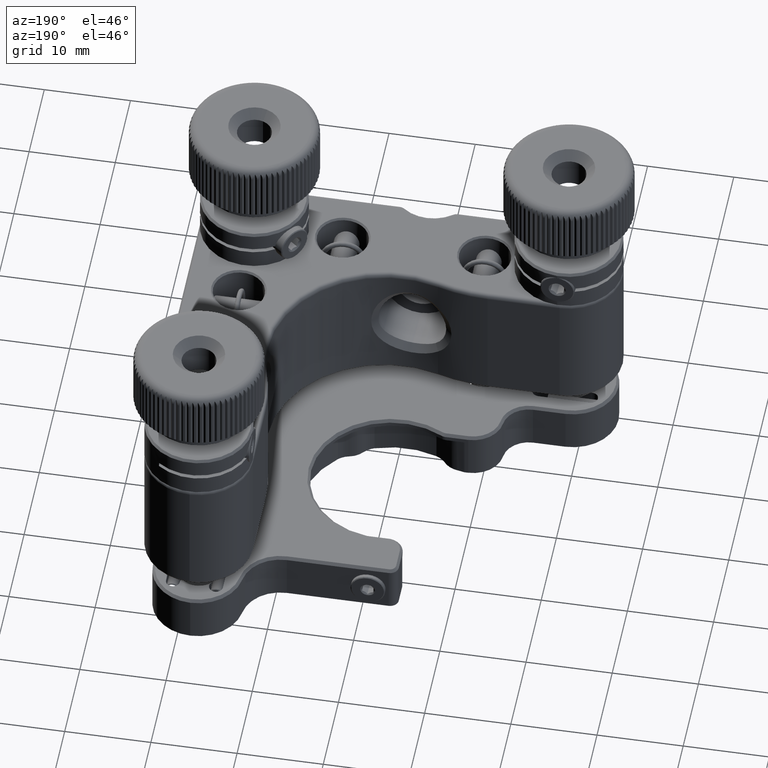
[diagram: clean part render]
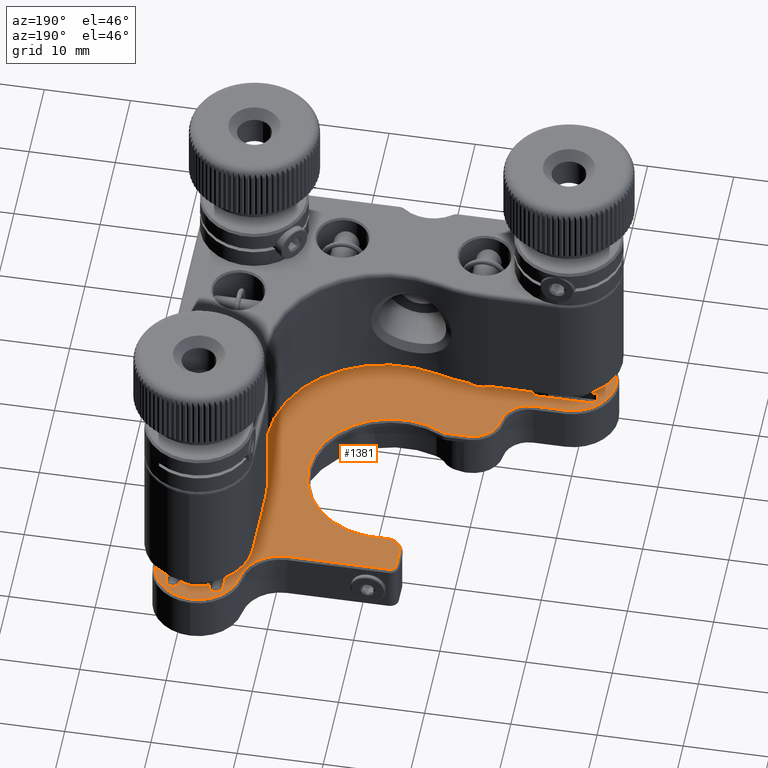
[diagram: same view with one face highlighted and labeled with its STEP entity id]
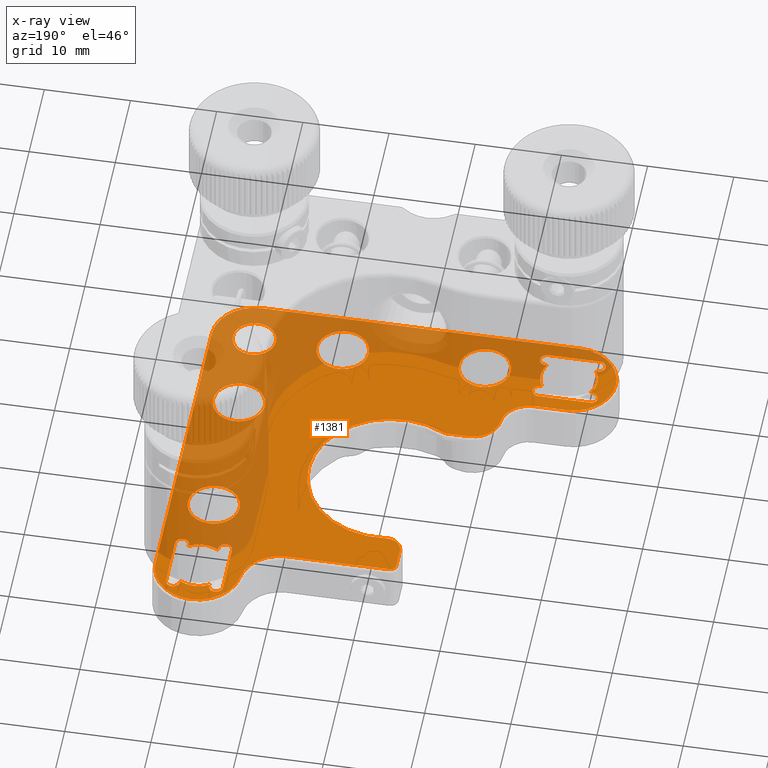
[diagram: x-ray of the same camera — body ghosted, the highlighted face saturated]
A machine part, auxiliary view. The second image highlights one B-rep face of the part: STEP entity #1381.
The next image is the same camera in x-ray: the body ghosted, the highlighted face saturated — about 47% of this face is hidden behind the body in this view.
In plain terms, the highlighted planar face has unit normal (0, -0, -1).
Its self-contained STEP definition (entity closure, byte-faithful):
#86 = CARTESIAN_POINT ( 'NONE',  ( -18.74999999999997513, -23.19999999999999218, -11.00000000000000355 ) ) ;
#655 = DIRECTION ( 'NONE',  ( -1.000000000000000000, 0.000000000000000000, 0.000000000000000000 ) ) ;
#746 = CARTESIAN_POINT ( 'NONE',  ( -21.07842712474621649, -16.54999999999999361, -11.00000000000000355 ) ) ;
#763 = DIRECTION ( 'NONE',  ( -1.000000000000000000, 0.000000000000000000, 0.000000000000000000 ) ) ;
#784 = DIRECTION ( 'NONE',  ( 2.857193325768580482E-17, -1.471345059095184155E-18, -1.000000000000000000 ) ) ;
#876 = FACE_BOUND ( 'NONE', #20900, .T. ) ;
#1008 = VERTEX_POINT ( 'NONE', #54663 ) ;
#1031 = VERTEX_POINT ( 'NONE', #42347 ) ;
#1137 = ORIENTED_EDGE ( 'NONE', *, *, #48537, .T. ) ;
#1381 = ADVANCED_FACE ( 'NONE', ( #24072, #32714, #45590, #20141, #45868, #37474, #20977, #876 ), #16787, .F. ) ;
#1504 = CARTESIAN_POINT ( 'NONE',  ( 18.25000000000002487, 18.25000000000002487, -11.00000000000000355 ) ) ;
#2034 = AXIS2_PLACEMENT_3D ( 'NONE', #14059, #9880, #22714 ) ;
#2043 = ORIENTED_EDGE ( 'NONE', *, *, #44772, .T. ) ;
#2077 = CIRCLE ( 'NONE', #15427, 3.000000000000000888 ) ;
#2567 = CARTESIAN_POINT ( 'NONE',  ( 18.25000000000002487, 18.25000000000002487, -11.00000000000000355 ) ) ;
#2584 = VERTEX_POINT ( 'NONE', #31807 ) ;
#2660 = CARTESIAN_POINT ( 'NONE',  ( -3.949999999999966427, 18.74999999999999645, -11.00000000000000355 ) ) ;
#2754 = VERTEX_POINT ( 'NONE', #41841 ) ;
#2769 = EDGE_CURVE ( 'NONE', #50683, #50042, #15380, .T. ) ;
#3156 = CARTESIAN_POINT ( 'NONE',  ( -15.24999999999998934, -20.74999999999999645, -11.00000000000000355 ) ) ;
#3169 = EDGE_CURVE ( 'NONE', #20405, #9290, #49821, .T. ) ;
#3198 = DIRECTION ( 'NONE',  ( 1.000000000000000000, 0.000000000000000000, 0.000000000000000000 ) ) ;
#3335 = ORIENTED_EDGE ( 'NONE', *, *, #21566, .T. ) ;
#3680 = VERTEX_POINT ( 'NONE', #16563 ) ;
#3787 = CARTESIAN_POINT ( 'NONE',  ( -21.24999999999998934, -19.94999999999999574, -11.00000000000000355 ) ) ;
#3821 = CIRCLE ( 'NONE', #24299, 2.499999999999998668 ) ;
#4159 = AXIS2_PLACEMENT_3D ( 'NONE', #27818, #53256, #11079 ) ;
#4357 = DIRECTION ( 'NONE',  ( 1.000000000000000000, -8.326672684688674053E-17, 2.857193325768579865E-17 ) ) ;
#4768 = CIRCLE ( 'NONE', #30640, 0.7999999999999986011 ) ;
#5061 = ORIENTED_EDGE ( 'NONE', *, *, #25371, .F. ) ;
#5103 = AXIS2_PLACEMENT_3D ( 'NONE', #23134, #53306, #36250 ) ;
#5214 = LINE ( 'NONE', #34272, #34483 ) ;
#5301 = CARTESIAN_POINT ( 'NONE',  ( -21.24999999999998934, -14.94999999999999929, -11.00000000000000355 ) ) ;
#5597 = VERTEX_POINT ( 'NONE', #19201 ) ;
#5657 = DIRECTION ( 'NONE',  ( -2.857193325768580482E-17, 1.471345059095184155E-18, 1.000000000000000000 ) ) ;
#5765 = ORIENTED_EDGE ( 'NONE', *, *, #29178, .F. ) ;
#5788 = DIRECTION ( 'NONE',  ( -2.857193325768580482E-17, 1.471345059095184155E-18, 1.000000000000000000 ) ) ;
#5884 = EDGE_CURVE ( 'NONE', #47738, #1031, #48513, .T. ) ;
#6037 = CIRCLE ( 'NONE', #35443, 2.999999999999995559 ) ;
#6392 = CARTESIAN_POINT ( 'NONE',  ( -18.24999999999998934, -18.24999999999999645, -11.00000000000000355 ) ) ;
#6455 = ORIENTED_EDGE ( 'NONE', *, *, #18020, .T. ) ;
#6591 = EDGE_LOOP ( 'NONE', ( #45961, #41536, #19968, #16815, #51707, #47573, #50253, #40201, #28043, #15415, #36345, #15598, #23830, #35689, #34625, #33349, #13867, #32701, #51493 ) ) ;
#6597 = DIRECTION ( 'NONE',  ( -2.857193325768580482E-17, 1.471345059095184155E-18, 1.000000000000000000 ) ) ;
#6629 = VECTOR ( 'NONE', #40865, 1000.000000000000000 ) ;
#6662 = LINE ( 'NONE', #23415, #50080 ) ;
#6698 = CIRCLE ( 'NONE', #41465, 0.6999999999999979572 ) ;
#6759 = CARTESIAN_POINT ( 'NONE',  ( 20.75000000000002132, 15.25000000000002309, -11.00000000000000355 ) ) ;
#6825 = CIRCLE ( 'NONE', #13967, 2.999999999999995559 ) ;
#6829 = LINE ( 'NONE', #2660, #51516 ) ;
#6831 = DIRECTION ( 'NONE',  ( -1.000000000000000000, 0.000000000000000000, 0.000000000000000000 ) ) ;
#6946 = CARTESIAN_POINT ( 'NONE',  ( 18.25000000000001421, -18.24999999999999645, -11.00000000000000355 ) ) ;
#7342 = CARTESIAN_POINT ( 'NONE',  ( -2.045089285714258853, 10.33073541818146168, -11.00000000000000355 ) ) ;
#7394 = CARTESIAN_POINT ( 'NONE',  ( -8.499999999999976907, -18.24999999999999645, -11.00000000000000355 ) ) ;
#7404 = ORIENTED_EDGE ( 'NONE', *, *, #28397, .T. ) ;
#7564 = EDGE_CURVE ( 'NONE', #17021, #27505, #29701, .T. ) ;
#7613 = DIRECTION ( 'NONE',  ( -2.857193325768580482E-17, 1.471345059095184155E-18, 1.000000000000000000 ) ) ;
#7702 = CARTESIAN_POINT ( 'NONE',  ( -15.24999999999998934, -21.54999999999999361, -11.00000000000000355 ) ) ;
#7758 = CIRCLE ( 'NONE', #5103, 3.300000000000002487 ) ;
#8006 = VERTEX_POINT ( 'NONE', #42434 ) ;
#8044 = DIRECTION ( 'NONE',  ( -2.857193325768580482E-17, 1.471345059095184155E-18, 1.000000000000000000 ) ) ;
#8170 = CARTESIAN_POINT ( 'NONE',  ( 18.25000000000001776, -7.999999999999998224, -11.00000000000000355 ) ) ;
#8177 = EDGE_CURVE ( 'NONE', #9290, #19429, #7758, .T. ) ;
#8536 = CARTESIAN_POINT ( 'NONE',  ( 19.95000000000002061, 21.25000000000001776, -11.00000000000000355 ) ) ;
#8660 = DIRECTION ( 'NONE',  ( -2.857193325768580482E-17, 1.471345059095184155E-18, 1.000000000000000000 ) ) ;
#8704 = VECTOR ( 'NONE', #17431, 1000.000000000000000 ) ;
#8786 = EDGE_CURVE ( 'NONE', #3680, #17370, #39528, .T. ) ;
#8875 = DIRECTION ( 'NONE',  ( -1.000000000000000000, 0.000000000000000000, 0.000000000000000000 ) ) ;
#8942 = VECTOR ( 'NONE', #50440, 1000.000000000000000 ) ;
#9186 = ORIENTED_EDGE ( 'NONE', *, *, #24586, .F. ) ;
#9232 = ORIENTED_EDGE ( 'NONE', *, *, #32099, .T. ) ;
#9290 = VERTEX_POINT ( 'NONE', #37656 ) ;
#9480 = EDGE_CURVE ( 'NONE', #53622, #5597, #25312, .T. ) ;
#9493 = VERTEX_POINT ( 'NONE', #25618 ) ;
#9497 = CARTESIAN_POINT ( 'NONE',  ( -3.949999999999969091, 14.39999999999999680, -11.00000000000000355 ) ) ;
#9598 = CIRCLE ( 'NONE', #53298, 3.300000000000004263 ) ;
#9647 = EDGE_CURVE ( 'NONE', #46936, #39407, #18075, .T. ) ;
#9707 = CIRCLE ( 'NONE', #25747, 3.300000000000004263 ) ;
#9880 = DIRECTION ( 'NONE',  ( 2.857193325768580482E-17, -1.471345059095184155E-18, -1.000000000000000000 ) ) ;
#9935 = EDGE_LOOP ( 'NONE', ( #22109, #25193 ) ) ;
#9968 = EDGE_CURVE ( 'NONE', #51244, #32551, #50719, .T. ) ;
#9984 = DIRECTION ( 'NONE',  ( -1.000000000000000000, 0.000000000000000000, 0.000000000000000000 ) ) ;
#10060 = ORIENTED_EDGE ( 'NONE', *, *, #17234, .T. ) ;
#10159 = EDGE_LOOP ( 'NONE', ( #49282, #1137, #48050, #5765, #45843, #37443, #21227, #34507, #9232, #3335, #35012, #37416, #14880, #21141, #28170 ) ) ;
#10178 = DIRECTION ( 'NONE',  ( -1.000000000000000000, 0.000000000000000000, 0.000000000000000000 ) ) ;
#10698 = CARTESIAN_POINT ( 'NONE',  ( 16.55000000000001847, 21.25000000000001776, -11.00000000000000355 ) ) ;
#10714 = EDGE_CURVE ( 'NONE', #52395, #43062, #53444, .T. ) ;
#10716 = DIRECTION ( 'NONE',  ( -2.857193325768580482E-17, 1.471345059095184155E-18, 1.000000000000000000 ) ) ;
#10731 = VECTOR ( 'NONE', #11519, 1000.000000000000000 ) ;
#10773 = CARTESIAN_POINT ( 'NONE',  ( -5.541002403190551817, -7.389215686274511086, -11.00000000000000355 ) ) ;
#11079 = DIRECTION ( 'NONE',  ( 1.000000000000000000, 0.000000000000000000, 0.000000000000000000 ) ) ;
#11217 = DIRECTION ( 'NONE',  ( -1.000000000000000000, 0.000000000000000000, 0.000000000000000000 ) ) ;
#11397 = AXIS2_PLACEMENT_3D ( 'NONE', #6759, #23791, #48690 ) ;
#11519 = DIRECTION ( 'NONE',  ( 1.000000000000000000, -8.326672684688674053E-17, 2.857193325768579865E-17 ) ) ;
#11768 = CIRCLE ( 'NONE', #54559, 4.949999999999997513 ) ;
#11935 = VERTEX_POINT ( 'NONE', #10773 ) ;
#11942 = AXIS2_PLACEMENT_3D ( 'NONE', #48983, #10716, #53174 ) ;
#12088 = ORIENTED_EDGE ( 'NONE', *, *, #51432, .T. ) ;
#12500 = AXIS2_PLACEMENT_3D ( 'NONE', #26819, #31291, #19536 ) ;
#12686 = DIRECTION ( 'NONE',  ( 1.000000000000000000, 0.000000000000000000, 0.000000000000000000 ) ) ;
#13071 = VERTEX_POINT ( 'NONE', #21129 ) ;
#13824 = VERTEX_POINT ( 'NONE', #53046 ) ;
#13867 = ORIENTED_EDGE ( 'NONE', *, *, #55241, .T. ) ;
#13967 = AXIS2_PLACEMENT_3D ( 'NONE', #8170, #38876, #26021 ) ;
#14059 = CARTESIAN_POINT ( 'NONE',  ( -18.24999999999998934, -18.24999999999999645, -11.00000000000000355 ) ) ;
#14310 = AXIS2_PLACEMENT_3D ( 'NONE', #17073, #34374, #38853 ) ;
#14506 = VERTEX_POINT ( 'NONE', #54344 ) ;
#14549 = CIRCLE ( 'NONE', #45747, 0.7999999999999986011 ) ;
#14839 = EDGE_CURVE ( 'NONE', #13824, #46112, #42675, .T. ) ;
#14880 = ORIENTED_EDGE ( 'NONE', *, *, #21263, .F. ) ;
#14980 = DIRECTION ( 'NONE',  ( 2.857193325768580482E-17, -1.471345059095184155E-18, -1.000000000000000000 ) ) ;
#15181 = CARTESIAN_POINT ( 'NONE',  ( -15.24999999999998934, -15.75000000000000000, -11.00000000000000355 ) ) ;
#15267 = CARTESIAN_POINT ( 'NONE',  ( 8.568058046032309250, 19.89999999999999503, -11.00000000000000355 ) ) ;
#15380 = CIRCLE ( 'NONE', #39429, 4.949999999999999289 ) ;
#15415 = ORIENTED_EDGE ( 'NONE', *, *, #23351, .T. ) ;
#15427 = AXIS2_PLACEMENT_3D ( 'NONE', #52043, #47828, #30779 ) ;
#15598 = ORIENTED_EDGE ( 'NONE', *, *, #39654, .T. ) ;
#15856 = CIRCLE ( 'NONE', #11397, 0.7999999999999986011 ) ;
#15945 = CARTESIAN_POINT ( 'NONE',  ( -0.8999999999999801492, 0.8999999999999961364, -11.00000000000000355 ) ) ;
#16232 = ORIENTED_EDGE ( 'NONE', *, *, #9968, .T. ) ;
#16505 = EDGE_CURVE ( 'NONE', #35398, #9493, #41911, .T. ) ;
#16563 = CARTESIAN_POINT ( 'NONE',  ( 14.95000000000002593, 15.25000000000001954, -11.00000000000000355 ) ) ;
#16619 = CIRCLE ( 'NONE', #4159, 0.7999999999999986011 ) ;
#16627 = CARTESIAN_POINT ( 'NONE',  ( -8.519259301592121858, -10.49999999999999822, -11.00000000000000355 ) ) ;
#16787 = PLANE ( 'NONE',  #14310 ) ;
#16815 = ORIENTED_EDGE ( 'NONE', *, *, #49435, .T. ) ;
#16825 = CARTESIAN_POINT ( 'NONE',  ( 15.75000000000002487, 15.25000000000001954, -11.00000000000000355 ) ) ;
#16840 = CARTESIAN_POINT ( 'NONE',  ( 11.00000000000002309, -18.24999999999999645, -11.00000000000000355 ) ) ;
#17021 = VERTEX_POINT ( 'NONE', #54042 ) ;
#17072 = EDGE_CURVE ( 'NONE', #30415, #20909, #6829, .T. ) ;
#17073 = CARTESIAN_POINT ( 'NONE',  ( 18.25000000000001776, 18.74999999999999645, -11.00000000000000355 ) ) ;
#17185 = DIRECTION ( 'NONE',  ( -1.000000000000000000, 2.545974405236084502E-16, -2.857193325768579865E-17 ) ) ;
#17203 = EDGE_CURVE ( 'NONE', #38359, #51244, #9598, .T. ) ;
#17234 = EDGE_CURVE ( 'NONE', #32551, #43023, #31865, .T. ) ;
#17370 = VERTEX_POINT ( 'NONE', #52076 ) ;
#17431 = DIRECTION ( 'NONE',  ( -2.498001805406601723E-16, 1.000000000000000000, -1.471345059095182229E-18 ) ) ;
#17503 = EDGE_CURVE ( 'NONE', #5597, #50360, #25726, .T. ) ;
#17832 = CARTESIAN_POINT ( 'NONE',  ( 19.95000000000002061, 21.07842712474621649, -11.00000000000000355 ) ) ;
#18020 = EDGE_CURVE ( 'NONE', #14506, #31649, #9707, .T. ) ;
#18075 = LINE ( 'NONE', #52175, #47096 ) ;
#18387 = EDGE_LOOP ( 'NONE', ( #43828, #25812 ) ) ;
#18477 = AXIS2_PLACEMENT_3D ( 'NONE', #39500, #43657, #48139 ) ;
#18518 = EDGE_CURVE ( 'NONE', #49999, #23842, #31144, .T. ) ;
#18593 = CARTESIAN_POINT ( 'NONE',  ( 15.75000000000002132, 21.25000000000001776, -11.00000000000000355 ) ) ;
#18618 = DIRECTION ( 'NONE',  ( -1.000000000000000000, 0.000000000000000000, 0.000000000000000000 ) ) ;
#18812 = LINE ( 'NONE', #23812, #6629 ) ;
#18951 = EDGE_CURVE ( 'NONE', #50360, #54355, #29361, .T. ) ;
#19201 = CARTESIAN_POINT ( 'NONE',  ( 23.20000000000002061, -18.25000000000000355, -11.00000000000000178 ) ) ;
#19429 = VERTEX_POINT ( 'NONE', #32635 ) ;
#19503 = CARTESIAN_POINT ( 'NONE',  ( -11.49999999999997691, -18.24999999999999645, -11.00000000000000355 ) ) ;
#19536 = DIRECTION ( 'NONE',  ( 1.000000000000000000, 0.000000000000000000, 0.000000000000000000 ) ) ;
#19782 = EDGE_CURVE ( 'NONE', #47359, #19829, #24737, .T. ) ;
#19829 = VERTEX_POINT ( 'NONE', #7702 ) ;
#19930 = AXIS2_PLACEMENT_3D ( 'NONE', #33441, #8044, #8875 ) ;
#19968 = ORIENTED_EDGE ( 'NONE', *, *, #2769, .T. ) ;
#20025 = CARTESIAN_POINT ( 'NONE',  ( -21.24999999999998934, -19.94999999999999574, -11.00000000000000355 ) ) ;
#20103 = CARTESIAN_POINT ( 'NONE',  ( -14.94999999999995666, -18.24999999999999645, -11.00000000000000355 ) ) ;
#20141 = FACE_BOUND ( 'NONE', #21329, .T. ) ;
#20405 = VERTEX_POINT ( 'NONE', #20863 ) ;
#20516 = VERTEX_POINT ( 'NONE', #33699 ) ;
#20682 = DIRECTION ( 'NONE',  ( -1.000000000000000000, 7.988858113051084330E-17, 0.000000000000000000 ) ) ;
#20747 = AXIS2_PLACEMENT_3D ( 'NONE', #7394, #24420, #3198 ) ;
#20814 = LINE ( 'NONE', #55188, #31351 ) ;
#20863 = CARTESIAN_POINT ( 'NONE',  ( -8.519259301592121858, -7.300000000000000711, -11.00000000000000355 ) ) ;
#20900 = EDGE_LOOP ( 'NONE', ( #12088, #6455, #7404, #34695, #54259, #27175, #37539, #28834, #16232, #10060, #43718, #2043 ) ) ;
#20909 = VERTEX_POINT ( 'NONE', #33021 ) ;
#20937 = CARTESIAN_POINT ( 'NONE',  ( -21.24999999999998934, -21.54999999999999361, -11.00000000000000355 ) ) ;
#20977 = FACE_BOUND ( 'NONE', #18387, .T. ) ;
#21045 = CARTESIAN_POINT ( 'NONE',  ( 18.25000000000001421, -18.24999999999999645, -11.00000000000000355 ) ) ;
#21047 = CARTESIAN_POINT ( 'NONE',  ( 18.25000000000001776, 8.499999999999998224, -11.00000000000000355 ) ) ;
#21063 = EDGE_CURVE ( 'NONE', #43023, #8006, #35230, .T. ) ;
#21129 = CARTESIAN_POINT ( 'NONE',  ( -5.499999999999975131, -18.24999999999999645, -11.00000000000000355 ) ) ;
#21141 = ORIENTED_EDGE ( 'NONE', *, *, #19782, .F. ) ;
#21227 = ORIENTED_EDGE ( 'NONE', *, *, #7564, .F. ) ;
#21263 = EDGE_CURVE ( 'NONE', #19829, #13824, #23289, .T. ) ;
#21329 = EDGE_LOOP ( 'NONE', ( #32103, #5061 ) ) ;
#21566 = EDGE_CURVE ( 'NONE', #29319, #2754, #46097, .T. ) ;
#21617 = VERTEX_POINT ( 'NONE', #54965 ) ;
#21620 = VECTOR ( 'NONE', #35832, 1000.000000000000000 ) ;
#21701 = CARTESIAN_POINT ( 'NONE',  ( -5.882971001320383309, -8.000000000000000000, -11.00000000000000355 ) ) ;
#21795 = EDGE_CURVE ( 'NONE', #32104, #38359, #5214, .T. ) ;
#21850 = DIRECTION ( 'NONE',  ( -2.857193325768580482E-17, 1.471345059095184155E-18, 1.000000000000000000 ) ) ;
#21875 = EDGE_LOOP ( 'NONE', ( #42280, #40178 ) ) ;
#21970 = DIRECTION ( 'NONE',  ( -2.857193325768580482E-17, 1.471345059095184155E-18, 1.000000000000000000 ) ) ;
#22109 = ORIENTED_EDGE ( 'NONE', *, *, #50739, .F. ) ;
#22132 = VERTEX_POINT ( 'NONE', #54901 ) ;
#22377 = CARTESIAN_POINT ( 'NONE',  ( 23.20000000000001705, 18.74999999999998934, -11.00000000000000178 ) ) ;
#22400 = CARTESIAN_POINT ( 'NONE',  ( 19.95000000000002416, 15.25000000000002309, -11.00000000000000355 ) ) ;
#22698 = CARTESIAN_POINT ( 'NONE',  ( 18.25000000000001776, 18.74999999999999645, -11.00000000000000355 ) ) ;
#22714 = DIRECTION ( 'NONE',  ( -1.000000000000000000, 0.000000000000000000, 0.000000000000000000 ) ) ;
#22758 = CARTESIAN_POINT ( 'NONE',  ( -3.249999999999971134, 15.09999999999999609, -11.00000000000000355 ) ) ;
#22847 = VERTEX_POINT ( 'NONE', #19503 ) ;
#22858 = DIRECTION ( 'NONE',  ( -1.000000000000000000, 0.000000000000000000, 0.000000000000000000 ) ) ;
#23063 = AXIS2_PLACEMENT_3D ( 'NONE', #16627, #33662, #50731 ) ;
#23134 = CARTESIAN_POINT ( 'NONE',  ( -14.99999999999998401, -9.999999999999996447, -11.00000000000000355 ) ) ;
#23289 = CIRCLE ( 'NONE', #39372, 0.7999999999999986011 ) ;
#23323 = DIRECTION ( 'NONE',  ( -3.147559373633474029E-16, -1.000000000000000000, 1.471345059095166051E-18 ) ) ;
#23345 = EDGE_CURVE ( 'NONE', #20516, #47359, #16619, .T. ) ;
#23351 = EDGE_CURVE ( 'NONE', #27411, #1008, #55006, .T. ) ;
#23415 = CARTESIAN_POINT ( 'NONE',  ( 16.55000000000001847, 21.25000000000001776, -11.00000000000000355 ) ) ;
#23633 = EDGE_LOOP ( 'NONE', ( #9186, #25485 ) ) ;
#23697 = EDGE_CURVE ( 'NONE', #21617, #31065, #6825, .T. ) ;
#23714 = VERTEX_POINT ( 'NONE', #86 ) ;
#23768 = AXIS2_PLACEMENT_3D ( 'NONE', #15267, #14980, #9984 ) ;
#23791 = DIRECTION ( 'NONE',  ( 2.857193325768580482E-17, -1.471345059095184155E-18, -1.000000000000000000 ) ) ;
#23812 = CARTESIAN_POINT ( 'NONE',  ( 18.25000000000001421, -7.300000000000003375, -11.00000000000000355 ) ) ;
#23830 = ORIENTED_EDGE ( 'NONE', *, *, #17072, .T. ) ;
#23842 = VERTEX_POINT ( 'NONE', #52037 ) ;
#23879 = VECTOR ( 'NONE', #24722, 1000.000000000000000 ) ;
#23886 = CARTESIAN_POINT ( 'NONE',  ( -14.44999999999999041, -15.75000000000000000, -11.00000000000000355 ) ) ;
#24072 = FACE_OUTER_BOUND ( 'NONE', #6591, .T. ) ;
#24227 = AXIS2_PLACEMENT_3D ( 'NONE', #34668, #5657, #39456 ) ;
#24299 = AXIS2_PLACEMENT_3D ( 'NONE', #21045, #29136, #12686 ) ;
#24313 = AXIS2_PLACEMENT_3D ( 'NONE', #44273, #28048, #6831 ) ;
#24398 = AXIS2_PLACEMENT_3D ( 'NONE', #21047, #37263, #33906 ) ;
#24420 = DIRECTION ( 'NONE',  ( -2.857193325768580482E-17, 1.471345059095184155E-18, 1.000000000000000000 ) ) ;
#24586 = EDGE_CURVE ( 'NONE', #31065, #21617, #6037, .T. ) ;
#24683 = CARTESIAN_POINT ( 'NONE',  ( -18.74999999999997868, -13.30000000000000071, -11.00000000000000355 ) ) ;
#24722 = DIRECTION ( 'NONE',  ( -2.498001805406601723E-16, 1.000000000000000000, -1.471345059095182229E-18 ) ) ;
#24737 = LINE ( 'NONE', #38155, #40176 ) ;
#25193 = ORIENTED_EDGE ( 'NONE', *, *, #53218, .F. ) ;
#25312 = CIRCLE ( 'NONE', #19930, 4.949999999999995737 ) ;
#25371 = EDGE_CURVE ( 'NONE', #9493, #35398, #45156, .T. ) ;
#25485 = ORIENTED_EDGE ( 'NONE', *, *, #23697, .F. ) ;
#25618 = CARTESIAN_POINT ( 'NONE',  ( 5.000000000000024869, -18.24999999999999645, -11.00000000000000355 ) ) ;
#25726 = LINE ( 'NONE', #22377, #53408 ) ;
#25747 = AXIS2_PLACEMENT_3D ( 'NONE', #2567, #45287, #11217 ) ;
#25786 = AXIS2_PLACEMENT_3D ( 'NONE', #6946, #31539, #32626 ) ;
#25812 = ORIENTED_EDGE ( 'NONE', *, *, #52389, .F. ) ;
#26021 = DIRECTION ( 'NONE',  ( 1.000000000000000000, 0.000000000000000000, 0.000000000000000000 ) ) ;
#26221 = DIRECTION ( 'NONE',  ( 1.000000000000000000, 1.042709462316870314E-16, 2.857193325768579865E-17 ) ) ;
#26424 = DIRECTION ( 'NONE',  ( 2.498001805406601723E-16, -1.000000000000000000, 1.471345059095182229E-18 ) ) ;
#26819 = CARTESIAN_POINT ( 'NONE',  ( 8.000000000000024869, -18.24999999999999645, -11.00000000000000355 ) ) ;
#27023 = EDGE_CURVE ( 'NONE', #49405, #17021, #48704, .T. ) ;
#27068 = VECTOR ( 'NONE', #32326, 1000.000000000000000 ) ;
#27156 = DIRECTION ( 'NONE',  ( -1.000000000000000000, 0.000000000000000000, 0.000000000000000000 ) ) ;
#27175 = ORIENTED_EDGE ( 'NONE', *, *, #51822, .T. ) ;
#27411 = VERTEX_POINT ( 'NONE', #52971 ) ;
#27483 = VERTEX_POINT ( 'NONE', #45673 ) ;
#27505 = VERTEX_POINT ( 'NONE', #23886 ) ;
#27784 = VECTOR ( 'NONE', #35266, 1000.000000000000000 ) ;
#27818 = CARTESIAN_POINT ( 'NONE',  ( -21.24999999999998934, -20.74999999999998934, -11.00000000000000355 ) ) ;
#28043 = ORIENTED_EDGE ( 'NONE', *, *, #35792, .T. ) ;
#28048 = DIRECTION ( 'NONE',  ( -2.857193325768580482E-17, 1.471345059095184155E-18, 1.000000000000000000 ) ) ;
#28170 = ORIENTED_EDGE ( 'NONE', *, *, #23345, .F. ) ;
#28397 = EDGE_CURVE ( 'NONE', #31649, #27483, #6662, .T. ) ;
#28778 = DIRECTION ( 'NONE',  ( 2.857193325768580482E-17, -1.471345059095184155E-18, -1.000000000000000000 ) ) ;
#28834 = ORIENTED_EDGE ( 'NONE', *, *, #17203, .T. ) ;
#29136 = DIRECTION ( 'NONE',  ( -2.857193325768580482E-17, 1.471345059095184155E-18, 1.000000000000000000 ) ) ;
#29178 = EDGE_CURVE ( 'NONE', #53728, #46936, #34905, .T. ) ;
#29319 = VERTEX_POINT ( 'NONE', #20103 ) ;
#29361 = CIRCLE ( 'NONE', #40996, 4.950000000000002842 ) ;
#29527 = DIRECTION ( 'NONE',  ( 1.000000000000000000, 0.000000000000000000, 0.000000000000000000 ) ) ;
#29701 = CIRCLE ( 'NONE', #45781, 0.7999999999999986011 ) ;
#29735 = EDGE_CURVE ( 'NONE', #23714, #53622, #34606, .T. ) ;
#30191 = DIRECTION ( 'NONE',  ( -8.701748030845823865E-17, 1.000000000000000000, -1.471345059095177607E-18 ) ) ;
#30306 = EDGE_CURVE ( 'NONE', #27483, #3680, #48283, .T. ) ;
#30415 = VERTEX_POINT ( 'NONE', #9497 ) ;
#30570 = CARTESIAN_POINT ( 'NONE',  ( 14.95000000000002416, 21.25000000000001776, -11.00000000000000355 ) ) ;
#30640 = AXIS2_PLACEMENT_3D ( 'NONE', #18593, #48502, #52416 ) ;
#30654 = DIRECTION ( 'NONE',  ( -1.000000000000000000, 7.988858113051084330E-17, 0.000000000000000000 ) ) ;
#30779 = DIRECTION ( 'NONE',  ( 1.000000000000000000, 0.000000000000000000, 0.000000000000000000 ) ) ;
#31051 = VERTEX_POINT ( 'NONE', #22758 ) ;
#31065 = VERTEX_POINT ( 'NONE', #35885 ) ;
#31144 = CIRCLE ( 'NONE', #25786, 2.499999999999998668 ) ;
#31291 = DIRECTION ( 'NONE',  ( -2.857193325768580482E-17, 1.471345059095184155E-18, 1.000000000000000000 ) ) ;
#31351 = VECTOR ( 'NONE', #17185, 1000.000000000000000 ) ;
#31367 = LINE ( 'NONE', #39499, #21620 ) ;
#31539 = DIRECTION ( 'NONE',  ( -2.857193325768580482E-17, 1.471345059095184155E-18, 1.000000000000000000 ) ) ;
#31649 = VERTEX_POINT ( 'NONE', #51989 ) ;
#31733 = DIRECTION ( 'NONE',  ( 1.000000000000000000, -8.326672684688674053E-17, 2.857193325768579865E-17 ) ) ;
#31783 = DIRECTION ( 'NONE',  ( 2.498001805406601723E-16, -1.000000000000000000, 1.471345059095182229E-18 ) ) ;
#31807 = CARTESIAN_POINT ( 'NONE',  ( -15.24999999999998934, -14.94999999999999929, -11.00000000000000355 ) ) ;
#31865 = CIRCLE ( 'NONE', #18477, 0.7999999999999986011 ) ;
#31909 = CARTESIAN_POINT ( 'NONE',  ( -21.24999999999998934, -16.54999999999999361, -11.00000000000000355 ) ) ;
#31999 = AXIS2_PLACEMENT_3D ( 'NONE', #15945, #28778, #20682 ) ;
#32099 = EDGE_CURVE ( 'NONE', #49405, #29319, #43964, .T. ) ;
#32103 = ORIENTED_EDGE ( 'NONE', *, *, #16505, .F. ) ;
#32104 = VERTEX_POINT ( 'NONE', #10698 ) ;
#32142 = CARTESIAN_POINT ( 'NONE',  ( -18.24999999999998934, -18.24999999999999645, -11.00000000000000355 ) ) ;
#32157 = EDGE_CURVE ( 'NONE', #2584, #53728, #31367, .T. ) ;
#32208 = VECTOR ( 'NONE', #46988, 1000.000000000000000 ) ;
#32243 = EDGE_CURVE ( 'NONE', #27505, #2584, #14549, .T. ) ;
#32286 = CARTESIAN_POINT ( 'NONE',  ( -18.74999999999997513, -18.24999999999999645, -11.00000000000000355 ) ) ;
#32326 = DIRECTION ( 'NONE',  ( -1.000000000000000000, 8.326672684688674053E-17, -2.857193325768579865E-17 ) ) ;
#32342 = DIRECTION ( 'NONE',  ( 2.857193325768580482E-17, -1.471345059095184155E-18, -1.000000000000000000 ) ) ;
#32455 = DIRECTION ( 'NONE',  ( -1.000000000000000000, 0.000000000000000000, 0.000000000000000000 ) ) ;
#32551 = VERTEX_POINT ( 'NONE', #47523 ) ;
#32626 = DIRECTION ( 'NONE',  ( 1.000000000000000000, 0.000000000000000000, 0.000000000000000000 ) ) ;
#32635 = CARTESIAN_POINT ( 'NONE',  ( -14.99999999999998579, -13.29999999999999893, -11.00000000000000355 ) ) ;
#32701 = ORIENTED_EDGE ( 'NONE', *, *, #38688, .T. ) ;
#32714 = FACE_BOUND ( 'NONE', #21875, .T. ) ;
#33021 = CARTESIAN_POINT ( 'NONE',  ( -3.949999999999969091, 12.01834070354024853, -11.00000000000000355 ) ) ;
#33184 = CARTESIAN_POINT ( 'NONE',  ( -18.74999999999998224, -18.25000000000000355, -11.00000000000000355 ) ) ;
#33242 = EDGE_CURVE ( 'NONE', #1008, #31051, #20814, .T. ) ;
#33349 = ORIENTED_EDGE ( 'NONE', *, *, #35035, .T. ) ;
#33370 = AXIS2_PLACEMENT_3D ( 'NONE', #21701, #21970, #763 ) ;
#33441 = CARTESIAN_POINT ( 'NONE',  ( 18.25000000000002132, -18.24999999999999645, -11.00000000000000355 ) ) ;
#33662 = DIRECTION ( 'NONE',  ( -2.857193325768580482E-17, 1.471345059095184155E-18, 1.000000000000000000 ) ) ;
#33699 = CARTESIAN_POINT ( 'NONE',  ( -21.24999999999998934, -19.94999999999999574, -11.00000000000000355 ) ) ;
#33841 = EDGE_CURVE ( 'NONE', #22132, #20516, #37024, .T. ) ;
#33906 = DIRECTION ( 'NONE',  ( 1.000000000000000000, 0.000000000000000000, 0.000000000000000000 ) ) ;
#34272 = CARTESIAN_POINT ( 'NONE',  ( 16.55000000000001847, 21.25000000000001776, -11.00000000000000355 ) ) ;
#34374 = DIRECTION ( 'NONE',  ( 2.857193325768579865E-17, -1.471345059095183962E-18, -1.000000000000000000 ) ) ;
#34420 = LINE ( 'NONE', #51228, #27784 ) ;
#34483 = VECTOR ( 'NONE', #26424, 1000.000000000000000 ) ;
#34507 = ORIENTED_EDGE ( 'NONE', *, *, #27023, .F. ) ;
#34606 = LINE ( 'NONE', #38817, #41997 ) ;
#34625 = ORIENTED_EDGE ( 'NONE', *, *, #10714, .T. ) ;
#34668 = CARTESIAN_POINT ( 'NONE',  ( -21.24999999999998934, -15.74999999999999289, -11.00000000000000355 ) ) ;
#34695 = ORIENTED_EDGE ( 'NONE', *, *, #30306, .T. ) ;
#34896 = DIRECTION ( 'NONE',  ( 2.857193325768580482E-17, -1.471345059095184155E-18, -1.000000000000000000 ) ) ;
#34905 = CIRCLE ( 'NONE', #24227, 0.7999999999999986011 ) ;
#35012 = ORIENTED_EDGE ( 'NONE', *, *, #37727, .F. ) ;
#35035 = EDGE_CURVE ( 'NONE', #43062, #11935, #41162, .T. ) ;
#35230 = LINE ( 'NONE', #47545, #32208 ) ;
#35266 = DIRECTION ( 'NONE',  ( -1.000000000000000000, 4.687608326195104516E-16, -2.857193325768579865E-17 ) ) ;
#35398 = VERTEX_POINT ( 'NONE', #16840 ) ;
#35443 = AXIS2_PLACEMENT_3D ( 'NONE', #41829, #54422, #29527 ) ;
#35538 = EDGE_CURVE ( 'NONE', #19429, #50683, #34420, .T. ) ;
#35689 = ORIENTED_EDGE ( 'NONE', *, *, #36903, .T. ) ;
#35792 = EDGE_CURVE ( 'NONE', #54355, #27411, #11768, .T. ) ;
#35832 = DIRECTION ( 'NONE',  ( -1.000000000000000000, 8.326672684688674053E-17, -2.857193325768579865E-17 ) ) ;
#35885 = CARTESIAN_POINT ( 'NONE',  ( 21.25000000000001066, -7.999999999999998224, -11.00000000000000355 ) ) ;
#36250 = DIRECTION ( 'NONE',  ( -1.000000000000000000, 0.000000000000000000, 0.000000000000000000 ) ) ;
#36345 = ORIENTED_EDGE ( 'NONE', *, *, #33242, .T. ) ;
#36556 = DIRECTION ( 'NONE',  ( -1.000000000000000000, -9.111678863716564317E-15, 0.000000000000000000 ) ) ;
#36797 = LINE ( 'NONE', #20025, #27068 ) ;
#36903 = EDGE_CURVE ( 'NONE', #20909, #52395, #49312, .T. ) ;
#37024 = LINE ( 'NONE', #3787, #8942 ) ;
#37157 = AXIS2_PLACEMENT_3D ( 'NONE', #6392, #32342, #22858 ) ;
#37263 = DIRECTION ( 'NONE',  ( -2.857193325768580482E-17, 1.471345059095184155E-18, 1.000000000000000000 ) ) ;
#37340 = DIRECTION ( 'NONE',  ( -2.498001805406601723E-16, 1.000000000000000000, -1.471345059095182229E-18 ) ) ;
#37416 = ORIENTED_EDGE ( 'NONE', *, *, #14839, .F. ) ;
#37443 = ORIENTED_EDGE ( 'NONE', *, *, #32243, .F. ) ;
#37474 = FACE_BOUND ( 'NONE', #9935, .T. ) ;
#37539 = ORIENTED_EDGE ( 'NONE', *, *, #21795, .T. ) ;
#37580 = AXIS2_PLACEMENT_3D ( 'NONE', #32286, #5788, #18618 ) ;
#37628 = CARTESIAN_POINT ( 'NONE',  ( 19.95000000000002061, 21.25000000000001776, -11.00000000000000355 ) ) ;
#37656 = CARTESIAN_POINT ( 'NONE',  ( -11.70977779926983686, -10.25384615384614939, -11.00000000000000355 ) ) ;
#37727 = EDGE_CURVE ( 'NONE', #46112, #2754, #36797, .T. ) ;
#38155 = CARTESIAN_POINT ( 'NONE',  ( -21.24999999999998934, -21.54999999999999361, -11.00000000000000355 ) ) ;
#38359 = VERTEX_POINT ( 'NONE', #46499 ) ;
#38688 = EDGE_CURVE ( 'NONE', #54467, #20405, #18812, .T. ) ;
#38725 = CARTESIAN_POINT ( 'NONE',  ( 23.20000000000002061, 18.74999999999998934, -11.00000000000000178 ) ) ;
#38817 = CARTESIAN_POINT ( 'NONE',  ( 18.25000000000001776, -23.19999999999998508, -11.00000000000000355 ) ) ;
#38853 = DIRECTION ( 'NONE',  ( -1.000000000000000000, 8.326672684688674053E-17, -2.857193325768579865E-17 ) ) ;
#38876 = DIRECTION ( 'NONE',  ( -2.857193325768580482E-17, 1.471345059095184155E-18, 1.000000000000000000 ) ) ;
#38905 = CARTESIAN_POINT ( 'NONE',  ( -5.882971001320383309, -7.300000000000001599, -11.00000000000000355 ) ) ;
#39095 = CARTESIAN_POINT ( 'NONE',  ( 18.25000000000002132, -23.19999999999999218, -11.00000000000000355 ) ) ;
#39372 = AXIS2_PLACEMENT_3D ( 'NONE', #46078, #41350, #41886 ) ;
#39407 = VERTEX_POINT ( 'NONE', #746 ) ;
#39429 = AXIS2_PLACEMENT_3D ( 'NONE', #33184, #49969, #36556 ) ;
#39456 = DIRECTION ( 'NONE',  ( -1.000000000000000000, 0.000000000000000000, 0.000000000000000000 ) ) ;
#39499 = CARTESIAN_POINT ( 'NONE',  ( -21.24999999999998934, -14.94999999999999929, -11.00000000000000355 ) ) ;
#39500 = CARTESIAN_POINT ( 'NONE',  ( 20.75000000000001776, 21.25000000000001776, -11.00000000000000355 ) ) ;
#39528 = LINE ( 'NONE', #30570, #8704 ) ;
#39654 = EDGE_CURVE ( 'NONE', #31051, #30415, #6698, .T. ) ;
#39662 = CIRCLE ( 'NONE', #33370, 0.6999999999999984013 ) ;
#39690 = DIRECTION ( 'NONE',  ( -1.000000000000000000, 0.000000000000000000, 0.000000000000000000 ) ) ;
#39747 = DIRECTION ( 'NONE',  ( -2.857193325768580482E-17, 1.471345059095184155E-18, 1.000000000000000000 ) ) ;
#39766 = DIRECTION ( 'NONE',  ( 2.857193325768580482E-17, -1.471345059095184155E-18, -1.000000000000000000 ) ) ;
#39824 = CARTESIAN_POINT ( 'NONE',  ( -15.24999999999998934, -19.94999999999999574, -11.00000000000000355 ) ) ;
#40176 = VECTOR ( 'NONE', #4357, 1000.000000000000000 ) ;
#40178 = ORIENTED_EDGE ( 'NONE', *, *, #18518, .F. ) ;
#40201 = ORIENTED_EDGE ( 'NONE', *, *, #18951, .T. ) ;
#40626 = CARTESIAN_POINT ( 'NONE',  ( 18.25000000000001776, 23.69999999999999929, -11.00000000000000355 ) ) ;
#40814 = DIRECTION ( 'NONE',  ( -1.000000000000000000, 0.000000000000000000, 0.000000000000000000 ) ) ;
#40850 = CARTESIAN_POINT ( 'NONE',  ( 8.600000000000020961, 0.8999999999999954703, -11.00000000000000355 ) ) ;
#40865 = DIRECTION ( 'NONE',  ( -1.000000000000000000, 8.326672684688674053E-17, -2.857193325768579865E-17 ) ) ;
#40996 = AXIS2_PLACEMENT_3D ( 'NONE', #22698, #39747, #27156 ) ;
#41102 = AXIS2_PLACEMENT_3D ( 'NONE', #32142, #45010, #40814 ) ;
#41162 = CIRCLE ( 'NONE', #42026, 9.500000000000001776 ) ;
#41350 = DIRECTION ( 'NONE',  ( -2.857193325768580482E-17, 1.471345059095184155E-18, 1.000000000000000000 ) ) ;
#41465 = AXIS2_PLACEMENT_3D ( 'NONE', #49868, #6597, #53803 ) ;
#41536 = ORIENTED_EDGE ( 'NONE', *, *, #35538, .T. ) ;
#41829 = CARTESIAN_POINT ( 'NONE',  ( 18.25000000000001776, -7.999999999999998224, -11.00000000000000355 ) ) ;
#41841 = CARTESIAN_POINT ( 'NONE',  ( -15.42157287525376219, -19.94999999999999574, -11.00000000000000355 ) ) ;
#41886 = DIRECTION ( 'NONE',  ( 1.000000000000000000, 0.000000000000000000, 0.000000000000000000 ) ) ;
#41911 = CIRCLE ( 'NONE', #12500, 2.999999999999999112 ) ;
#41997 = VECTOR ( 'NONE', #26221, 1000.000000000000000 ) ;
#42026 = AXIS2_PLACEMENT_3D ( 'NONE', #42132, #784, #30654 ) ;
#42132 = CARTESIAN_POINT ( 'NONE',  ( -0.8999999999999801492, 0.8999999999999961364, -11.00000000000000355 ) ) ;
#42245 = DIRECTION ( 'NONE',  ( 1.000000000000000000, 0.000000000000000000, 0.000000000000000000 ) ) ;
#42280 = ORIENTED_EDGE ( 'NONE', *, *, #50824, .F. ) ;
#42347 = CARTESIAN_POINT ( 'NONE',  ( 15.25000000000001066, 8.499999999999998224, -11.00000000000000355 ) ) ;
#42380 = CARTESIAN_POINT ( 'NONE',  ( 21.25000000000002132, 8.499999999999998224, -11.00000000000000355 ) ) ;
#42434 = CARTESIAN_POINT ( 'NONE',  ( 21.55000000000002203, 15.25000000000002309, -11.00000000000000355 ) ) ;
#42675 = CIRCLE ( 'NONE', #49822, 0.7999999999999986011 ) ;
#42920 = AXIS2_PLACEMENT_3D ( 'NONE', #16825, #34896, #50937 ) ;
#43023 = VERTEX_POINT ( 'NONE', #49248 ) ;
#43062 = VERTEX_POINT ( 'NONE', #40850 ) ;
#43348 = AXIS2_PLACEMENT_3D ( 'NONE', #43930, #21850, #48121 ) ;
#43657 = DIRECTION ( 'NONE',  ( 2.857193325768580482E-17, -1.471345059095184155E-18, -1.000000000000000000 ) ) ;
#43718 = ORIENTED_EDGE ( 'NONE', *, *, #21063, .T. ) ;
#43745 = CARTESIAN_POINT ( 'NONE',  ( -21.24999999999998934, -16.54999999999999361, -11.00000000000000355 ) ) ;
#43828 = ORIENTED_EDGE ( 'NONE', *, *, #5884, .F. ) ;
#43930 = CARTESIAN_POINT ( 'NONE',  ( 8.000000000000024869, -18.24999999999999645, -11.00000000000000355 ) ) ;
#43964 = CIRCLE ( 'NONE', #2034, 3.300000000000032241 ) ;
#44273 = CARTESIAN_POINT ( 'NONE',  ( -2.249999999999972022, 12.01834070354024853, -11.00000000000000355 ) ) ;
#44668 = CARTESIAN_POINT ( 'NONE',  ( -23.69999999999997797, -18.24999999999998934, -11.00000000000000355 ) ) ;
#44772 = EDGE_CURVE ( 'NONE', #8006, #48339, #15856, .T. ) ;
#44853 = CIRCLE ( 'NONE', #20747, 3.000000000000000888 ) ;
#45010 = DIRECTION ( 'NONE',  ( 2.857193325768580482E-17, -1.471345059095184155E-18, -1.000000000000000000 ) ) ;
#45059 = DIRECTION ( 'NONE',  ( -2.857193325768580482E-17, 1.471345059095184155E-18, 1.000000000000000000 ) ) ;
#45156 = CIRCLE ( 'NONE', #43348, 2.999999999999999112 ) ;
#45287 = DIRECTION ( 'NONE',  ( 2.857193325768580482E-17, -1.471345059095184155E-18, -1.000000000000000000 ) ) ;
#45590 = FACE_BOUND ( 'NONE', #10159, .T. ) ;
#45673 = CARTESIAN_POINT ( 'NONE',  ( 16.55000000000002203, 15.25000000000001954, -11.00000000000000355 ) ) ;
#45736 = LINE ( 'NONE', #37628, #52048 ) ;
#45747 = AXIS2_PLACEMENT_3D ( 'NONE', #54529, #53429, #32455 ) ;
#45781 = AXIS2_PLACEMENT_3D ( 'NONE', #15181, #45059, #10178 ) ;
#45843 = ORIENTED_EDGE ( 'NONE', *, *, #32157, .F. ) ;
#45868 = FACE_BOUND ( 'NONE', #23633, .T. ) ;
#45961 = ORIENTED_EDGE ( 'NONE', *, *, #8177, .T. ) ;
#46078 = CARTESIAN_POINT ( 'NONE',  ( -15.24999999999998934, -20.74999999999999645, -11.00000000000000355 ) ) ;
#46097 = CIRCLE ( 'NONE', #37157, 3.300000000000032241 ) ;
#46112 = VERTEX_POINT ( 'NONE', #39824 ) ;
#46499 = CARTESIAN_POINT ( 'NONE',  ( 16.55000000000001847, 21.07842712474621649, -11.00000000000000355 ) ) ;
#46928 = CARTESIAN_POINT ( 'NONE',  ( 18.25000000000001776, 18.75000000000000355, -11.00000000000000355 ) ) ;
#46936 = VERTEX_POINT ( 'NONE', #43745 ) ;
#46988 = DIRECTION ( 'NONE',  ( 2.498001805406601723E-16, -1.000000000000000000, 1.471345059095182229E-18 ) ) ;
#47096 = VECTOR ( 'NONE', #31733, 1000.000000000000000 ) ;
#47359 = VERTEX_POINT ( 'NONE', #20937 ) ;
#47497 = CARTESIAN_POINT ( 'NONE',  ( 15.75000000000001421, -18.24999999999999645, -11.00000000000000355 ) ) ;
#47523 = CARTESIAN_POINT ( 'NONE',  ( 19.95000000000002061, 21.25000000000001776, -11.00000000000000355 ) ) ;
#47545 = CARTESIAN_POINT ( 'NONE',  ( 21.55000000000001847, 21.25000000000001776, -11.00000000000000355 ) ) ;
#47573 = ORIENTED_EDGE ( 'NONE', *, *, #9480, .T. ) ;
#47738 = VERTEX_POINT ( 'NONE', #42380 ) ;
#47828 = DIRECTION ( 'NONE',  ( -2.857193325768580482E-17, 1.471345059095184155E-18, 1.000000000000000000 ) ) ;
#48050 = ORIENTED_EDGE ( 'NONE', *, *, #9647, .F. ) ;
#48121 = DIRECTION ( 'NONE',  ( 1.000000000000000000, 0.000000000000000000, 0.000000000000000000 ) ) ;
#48139 = DIRECTION ( 'NONE',  ( 0.000000000000000000, -1.000000000000000000, 0.000000000000000000 ) ) ;
#48283 = CIRCLE ( 'NONE', #42920, 0.7999999999999969358 ) ;
#48339 = VERTEX_POINT ( 'NONE', #22400 ) ;
#48502 = DIRECTION ( 'NONE',  ( 2.857193325768580482E-17, -1.471345059095184155E-18, -1.000000000000000000 ) ) ;
#48513 = CIRCLE ( 'NONE', #24398, 3.000000000000006217 ) ;
#48537 = EDGE_CURVE ( 'NONE', #22132, #39407, #51843, .T. ) ;
#48690 = DIRECTION ( 'NONE',  ( 0.000000000000000000, -1.000000000000000000, 0.000000000000000000 ) ) ;
#48704 = LINE ( 'NONE', #31909, #10731 ) ;
#48983 = CARTESIAN_POINT ( 'NONE',  ( 18.25000000000001776, 8.499999999999998224, -11.00000000000000355 ) ) ;
#49248 = CARTESIAN_POINT ( 'NONE',  ( 21.55000000000001847, 21.25000000000001776, -11.00000000000000355 ) ) ;
#49282 = ORIENTED_EDGE ( 'NONE', *, *, #33841, .F. ) ;
#49312 = CIRCLE ( 'NONE', #24313, 1.699999999999998845 ) ;
#49405 = VERTEX_POINT ( 'NONE', #53819 ) ;
#49435 = EDGE_CURVE ( 'NONE', #50042, #23714, #50968, .T. ) ;
#49821 = CIRCLE ( 'NONE', #23063, 3.199999999999999734 ) ;
#49822 = AXIS2_PLACEMENT_3D ( 'NONE', #3156, #7613, #42245 ) ;
#49868 = CARTESIAN_POINT ( 'NONE',  ( -3.249999999999971134, 14.39999999999999680, -11.00000000000000355 ) ) ;
#49969 = DIRECTION ( 'NONE',  ( -2.857193325768580482E-17, 1.471345059095184155E-18, 1.000000000000000000 ) ) ;
#49999 = VERTEX_POINT ( 'NONE', #47497 ) ;
#50042 = VERTEX_POINT ( 'NONE', #44668 ) ;
#50080 = VECTOR ( 'NONE', #31783, 1000.000000000000000 ) ;
#50253 = ORIENTED_EDGE ( 'NONE', *, *, #17503, .T. ) ;
#50360 = VERTEX_POINT ( 'NONE', #38725 ) ;
#50440 = DIRECTION ( 'NONE',  ( -1.000000000000000000, 8.326672684688674053E-17, -2.857193325768579865E-17 ) ) ;
#50683 = VERTEX_POINT ( 'NONE', #24683 ) ;
#50719 = LINE ( 'NONE', #8536, #23879 ) ;
#50731 = DIRECTION ( 'NONE',  ( -1.000000000000000000, 1.084202172485504434E-15, 0.000000000000000000 ) ) ;
#50739 = EDGE_CURVE ( 'NONE', #13071, #22847, #44853, .T. ) ;
#50824 = EDGE_CURVE ( 'NONE', #23842, #49999, #3821, .T. ) ;
#50937 = DIRECTION ( 'NONE',  ( 0.000000000000000000, 1.000000000000000000, 0.000000000000000000 ) ) ;
#50968 = CIRCLE ( 'NONE', #37580, 4.950000000000002842 ) ;
#51228 = CARTESIAN_POINT ( 'NONE',  ( 18.24999999999999645, -13.30000000000001847, -11.00000000000000355 ) ) ;
#51244 = VERTEX_POINT ( 'NONE', #17832 ) ;
#51432 = EDGE_CURVE ( 'NONE', #48339, #14506, #45736, .T. ) ;
#51493 = ORIENTED_EDGE ( 'NONE', *, *, #3169, .T. ) ;
#51516 = VECTOR ( 'NONE', #23323, 1000.000000000000000 ) ;
#51707 = ORIENTED_EDGE ( 'NONE', *, *, #29735, .T. ) ;
#51822 = EDGE_CURVE ( 'NONE', #17370, #32104, #4768, .T. ) ;
#51843 = CIRCLE ( 'NONE', #41102, 3.300000000000032241 ) ;
#51989 = CARTESIAN_POINT ( 'NONE',  ( 16.55000000000002203, 15.42157287525382792, -11.00000000000000355 ) ) ;
#52037 = CARTESIAN_POINT ( 'NONE',  ( 20.75000000000001066, -18.24999999999999645, -11.00000000000000355 ) ) ;
#52043 = CARTESIAN_POINT ( 'NONE',  ( -8.499999999999976907, -18.24999999999999645, -11.00000000000000355 ) ) ;
#52048 = VECTOR ( 'NONE', #37340, 1000.000000000000000 ) ;
#52076 = CARTESIAN_POINT ( 'NONE',  ( 14.95000000000002416, 21.25000000000001776, -11.00000000000000355 ) ) ;
#52175 = CARTESIAN_POINT ( 'NONE',  ( -21.24999999999998934, -16.54999999999999361, -11.00000000000000355 ) ) ;
#52389 = EDGE_CURVE ( 'NONE', #1031, #47738, #52876, .T. ) ;
#52395 = VERTEX_POINT ( 'NONE', #7342 ) ;
#52416 = DIRECTION ( 'NONE',  ( 0.000000000000000000, 1.000000000000000000, 0.000000000000000000 ) ) ;
#52876 = CIRCLE ( 'NONE', #11942, 3.000000000000006217 ) ;
#52971 = CARTESIAN_POINT ( 'NONE',  ( 13.33455254644718302, 19.33384615384615302, -11.00000000000000355 ) ) ;
#53046 = CARTESIAN_POINT ( 'NONE',  ( -14.44999999999999041, -20.74999999999999645, -11.00000000000000355 ) ) ;
#53174 = DIRECTION ( 'NONE',  ( 1.000000000000000000, 0.000000000000000000, 0.000000000000000000 ) ) ;
#53218 = EDGE_CURVE ( 'NONE', #22847, #13071, #2077, .T. ) ;
#53256 = DIRECTION ( 'NONE',  ( -2.857193325768580482E-17, 1.471345059095184155E-18, 1.000000000000000000 ) ) ;
#53298 = AXIS2_PLACEMENT_3D ( 'NONE', #1504, #39766, #655 ) ;
#53306 = DIRECTION ( 'NONE',  ( 2.857193325768580482E-17, -1.471345059095184155E-18, -1.000000000000000000 ) ) ;
#53408 = VECTOR ( 'NONE', #30191, 1000.000000000000000 ) ;
#53429 = DIRECTION ( 'NONE',  ( -2.857193325768580482E-17, 1.471345059095184155E-18, 1.000000000000000000 ) ) ;
#53444 = CIRCLE ( 'NONE', #31999, 9.500000000000001776 ) ;
#53622 = VERTEX_POINT ( 'NONE', #39095 ) ;
#53728 = VERTEX_POINT ( 'NONE', #5301 ) ;
#53803 = DIRECTION ( 'NONE',  ( -1.000000000000000000, 0.000000000000000000, 0.000000000000000000 ) ) ;
#53819 = CARTESIAN_POINT ( 'NONE',  ( -15.42157287525376219, -16.54999999999999361, -11.00000000000000355 ) ) ;
#54042 = CARTESIAN_POINT ( 'NONE',  ( -15.24999999999998934, -16.54999999999999361, -11.00000000000000355 ) ) ;
#54259 = ORIENTED_EDGE ( 'NONE', *, *, #8786, .T. ) ;
#54344 = CARTESIAN_POINT ( 'NONE',  ( 19.95000000000002416, 15.42157287525382436, -11.00000000000000355 ) ) ;
#54355 = VERTEX_POINT ( 'NONE', #40626 ) ;
#54422 = DIRECTION ( 'NONE',  ( -2.857193325768580482E-17, 1.471345059095184155E-18, 1.000000000000000000 ) ) ;
#54467 = VERTEX_POINT ( 'NONE', #38905 ) ;
#54529 = CARTESIAN_POINT ( 'NONE',  ( -15.24999999999998934, -15.75000000000000000, -11.00000000000000355 ) ) ;
#54559 = AXIS2_PLACEMENT_3D ( 'NONE', #46928, #8660, #39690 ) ;
#54663 = CARTESIAN_POINT ( 'NONE',  ( 8.568058046032311026, 15.09999999999999432, -11.00000000000000355 ) ) ;
#54901 = CARTESIAN_POINT ( 'NONE',  ( -21.07842712474621649, -19.94999999999999574, -11.00000000000000355 ) ) ;
#54965 = CARTESIAN_POINT ( 'NONE',  ( 15.25000000000001954, -7.999999999999998224, -11.00000000000000355 ) ) ;
#55006 = CIRCLE ( 'NONE', #23768, 4.800000000000002487 ) ;
#55188 = CARTESIAN_POINT ( 'NONE',  ( 18.25000000000001776, 15.09999999999999076, -11.00000000000000355 ) ) ;
#55241 = EDGE_CURVE ( 'NONE', #11935, #54467, #39662, .T. ) ;